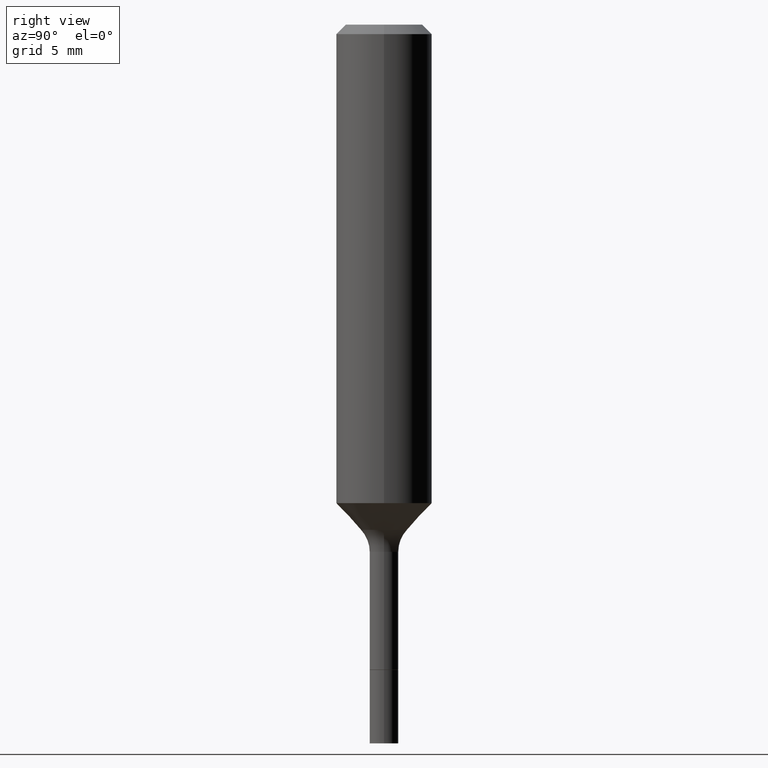
[diagram: clean part render]
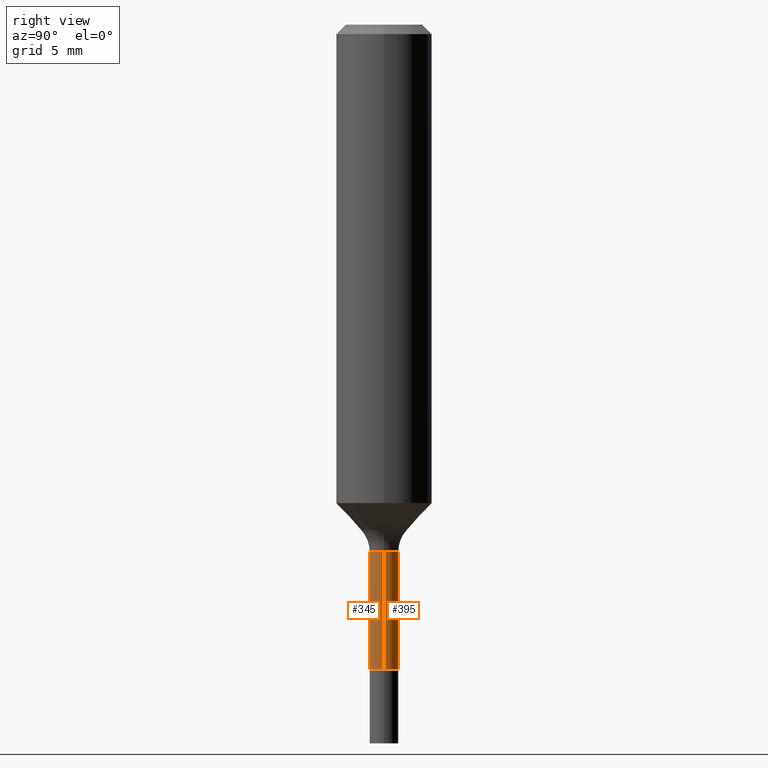
[diagram: same view with one multi-face feature highlighted, each face labeled with its STEP entity id]
A machine part, right view. The highlighted faces form ONE feature: a constant-radius fillet chain: 2 tangent blend faces with common blend radius 0.9004 mm. The faces share edges in the B-rep.
Their STEP definitions:
[1] entity #395 (Cylinder):
#1 = VECTOR ( 'NONE', #312, 39.37007874015748143 ) ;
#30 = LINE ( 'NONE', #346, #1 ) ;
#33 = ORIENTED_EDGE ( 'NONE', *, *, #299, .T. ) ;
#54 = CARTESIAN_POINT ( 'NONE',  ( 0.03545000000000000234, -5.799699651952348715E-15, -1.590200000000000058 ) ) ;
#63 = ORIENTED_EDGE ( 'NONE', *, *, #265, .F. ) ;
#64 = DIRECTION ( 'NONE',  ( 1.000000000000000000, -6.982962677686254089E-15, 0.000000000000000000 ) ) ;
#91 = CARTESIAN_POINT ( 'NONE',  ( 3.178375807398822119E-29, -4.537878296094436237E-15, -1.299700000000000077 ) ) ;
#93 = CARTESIAN_POINT ( 'NONE',  ( -0.03544999999999996071, -4.793128560734448544E-15, -1.299700000000000077 ) ) ;
#105 = DIRECTION ( 'NONE',  ( -2.445468806185136597E-29, 3.491481338843145583E-15, 1.000000000000000000 ) ) ;
#130 = LINE ( 'NONE', #250, #339 ) ;
#170 = DIRECTION ( 'NONE',  ( -2.445468806185136877E-29, 3.491481338843145188E-15, 1.000000000000000000 ) ) ;
#179 = FACE_OUTER_BOUND ( 'NONE', #281, .T. ) ;
#183 = CARTESIAN_POINT ( 'NONE',  ( 3.888784495595604691E-29, -5.552153625028370831E-15, -1.590200000000000058 ) ) ;
#184 = AXIS2_PLACEMENT_3D ( 'NONE', #355, #397, #475 ) ;
#190 = VERTEX_POINT ( 'NONE', #54 ) ;
#197 = ORIENTED_EDGE ( 'NONE', *, *, #439, .F. ) ;
#208 = CIRCLE ( 'NONE', #473, 0.03544999999999996071 ) ;
#214 = VERTEX_POINT ( 'NONE', #495 ) ;
#227 = VERTEX_POINT ( 'NONE', #93 ) ;
#228 = CYLINDRICAL_SURFACE ( 'NONE', #184, 0.03544999999999998153 ) ;
#232 = AXIS2_PLACEMENT_3D ( 'NONE', #183, #105, #64 ) ;
#250 = CARTESIAN_POINT ( 'NONE',  ( -0.03544999999999998153, 2.518873998269553846E-16, -1.743762489495363388E-30 ) ) ;
#265 = EDGE_CURVE ( 'NONE', #266, #227, #208, .T. ) ;
#266 = VERTEX_POINT ( 'NONE', #452 ) ;
#280 = CIRCLE ( 'NONE', #232, 0.03545000000000000234 ) ;
#281 = EDGE_LOOP ( 'NONE', ( #399, #33, #63, #197 ) ) ;
#291 = DIRECTION ( 'NONE',  ( 1.000000000000000000, -6.982962677686262766E-15, 0.000000000000000000 ) ) ;
#299 = EDGE_CURVE ( 'NONE', #214, #227, #130, .T. ) ;
#312 = DIRECTION ( 'NONE',  ( -2.445468806185136877E-29, 3.491481338843145188E-15, 1.000000000000000000 ) ) ;
#339 = VECTOR ( 'NONE', #170, 39.37007874015748143 ) ;
#346 = CARTESIAN_POINT ( 'NONE',  ( 0.03544999999999998153, -2.475460269239780314E-16, 1.728604667019658740E-30 ) ) ;
#355 = CARTESIAN_POINT ( 'NONE',  ( 0.000000000000000000, 0.000000000000000000, 0.000000000000000000 ) ) ;
#373 = EDGE_CURVE ( 'NONE', #190, #214, #280, .T. ) ;
#376 = DIRECTION ( 'NONE',  ( -2.445468806185136597E-29, 3.491481338843145583E-15, 1.000000000000000000 ) ) ;
#395 = ADVANCED_FACE ( 'NONE', ( #179 ), #228, .T. ) ;
#397 = DIRECTION ( 'NONE',  ( -2.445468806185136597E-29, 3.491481338843145583E-15, 1.000000000000000000 ) ) ;
#399 = ORIENTED_EDGE ( 'NONE', *, *, #373, .T. ) ;
#439 = EDGE_CURVE ( 'NONE', #190, #266, #30, .T. ) ;
#452 = CARTESIAN_POINT ( 'NONE',  ( 0.03544999999999996071, -4.785424323018414120E-15, -1.299700000000000077 ) ) ;
#473 = AXIS2_PLACEMENT_3D ( 'NONE', #91, #376, #291 ) ;
#475 = DIRECTION ( 'NONE',  ( 1.000000000000000000, -6.982962677686266711E-15, 4.876176775795936914E-29 ) ) ;
#495 = CARTESIAN_POINT ( 'NONE',  ( -0.03545000000000000234, -4.793128560734448544E-15, -1.590200000000000058 ) ) ;
[2] entity #345 (Cylinder):
#1 = VECTOR ( 'NONE', #312, 39.37007874015748143 ) ;
#24 = CARTESIAN_POINT ( 'NONE',  ( 0.000000000000000000, 0.000000000000000000, 0.000000000000000000 ) ) ;
#30 = LINE ( 'NONE', #346, #1 ) ;
#54 = CARTESIAN_POINT ( 'NONE',  ( 0.03545000000000000234, -5.799699651952348715E-15, -1.590200000000000058 ) ) ;
#76 = EDGE_LOOP ( 'NONE', ( #509, #444, #327, #506 ) ) ;
#84 = CIRCLE ( 'NONE', #503, 0.03544999999999996071 ) ;
#93 = CARTESIAN_POINT ( 'NONE',  ( -0.03544999999999996071, -4.793128560734448544E-15, -1.299700000000000077 ) ) ;
#107 = DIRECTION ( 'NONE',  ( -2.445468806185136597E-29, 3.491481338843145583E-15, 1.000000000000000000 ) ) ;
#111 = DIRECTION ( 'NONE',  ( 1.000000000000000000, -6.982962677686262766E-15, 0.000000000000000000 ) ) ;
#116 = EDGE_CURVE ( 'NONE', #214, #190, #172, .T. ) ;
#130 = LINE ( 'NONE', #250, #339 ) ;
#134 = CARTESIAN_POINT ( 'NONE',  ( 3.178375807398822119E-29, -4.537878296094436237E-15, -1.299700000000000077 ) ) ;
#135 = DIRECTION ( 'NONE',  ( 1.000000000000000000, -6.982962677686254089E-15, 0.000000000000000000 ) ) ;
#145 = CYLINDRICAL_SURFACE ( 'NONE', #287, 0.03544999999999998153 ) ;
#170 = DIRECTION ( 'NONE',  ( -2.445468806185136877E-29, 3.491481338843145188E-15, 1.000000000000000000 ) ) ;
#171 = CARTESIAN_POINT ( 'NONE',  ( 3.888784495595604691E-29, -5.552153625028370831E-15, -1.590200000000000058 ) ) ;
#172 = CIRCLE ( 'NONE', #192, 0.03545000000000000234 ) ;
#190 = VERTEX_POINT ( 'NONE', #54 ) ;
#192 = AXIS2_PLACEMENT_3D ( 'NONE', #171, #213, #135 ) ;
#213 = DIRECTION ( 'NONE',  ( -2.445468806185136597E-29, 3.491481338843145583E-15, 1.000000000000000000 ) ) ;
#214 = VERTEX_POINT ( 'NONE', #495 ) ;
#221 = DIRECTION ( 'NONE',  ( 1.000000000000000000, -6.982962677686266711E-15, 4.876176775795936914E-29 ) ) ;
#227 = VERTEX_POINT ( 'NONE', #93 ) ;
#250 = CARTESIAN_POINT ( 'NONE',  ( -0.03544999999999998153, 2.518873998269553846E-16, -1.743762489495363388E-30 ) ) ;
#266 = VERTEX_POINT ( 'NONE', #452 ) ;
#287 = AXIS2_PLACEMENT_3D ( 'NONE', #24, #501, #221 ) ;
#299 = EDGE_CURVE ( 'NONE', #214, #227, #130, .T. ) ;
#312 = DIRECTION ( 'NONE',  ( -2.445468806185136877E-29, 3.491481338843145188E-15, 1.000000000000000000 ) ) ;
#327 = ORIENTED_EDGE ( 'NONE', *, *, #439, .T. ) ;
#338 = EDGE_CURVE ( 'NONE', #227, #266, #84, .T. ) ;
#339 = VECTOR ( 'NONE', #170, 39.37007874015748143 ) ;
#345 = ADVANCED_FACE ( 'NONE', ( #436 ), #145, .T. ) ;
#346 = CARTESIAN_POINT ( 'NONE',  ( 0.03544999999999998153, -2.475460269239780314E-16, 1.728604667019658740E-30 ) ) ;
#436 = FACE_OUTER_BOUND ( 'NONE', #76, .T. ) ;
#439 = EDGE_CURVE ( 'NONE', #190, #266, #30, .T. ) ;
#444 = ORIENTED_EDGE ( 'NONE', *, *, #116, .T. ) ;
#452 = CARTESIAN_POINT ( 'NONE',  ( 0.03544999999999996071, -4.785424323018414120E-15, -1.299700000000000077 ) ) ;
#495 = CARTESIAN_POINT ( 'NONE',  ( -0.03545000000000000234, -4.793128560734448544E-15, -1.590200000000000058 ) ) ;
#501 = DIRECTION ( 'NONE',  ( -2.445468806185136597E-29, 3.491481338843145583E-15, 1.000000000000000000 ) ) ;
#503 = AXIS2_PLACEMENT_3D ( 'NONE', #134, #107, #111 ) ;
#506 = ORIENTED_EDGE ( 'NONE', *, *, #338, .F. ) ;
#509 = ORIENTED_EDGE ( 'NONE', *, *, #299, .F. ) ;